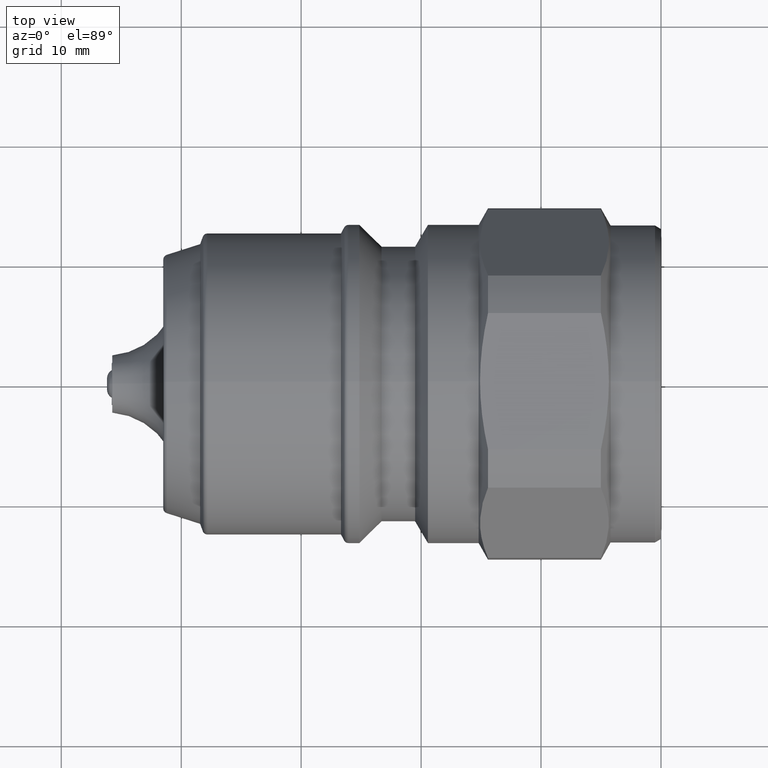
[diagram: clean part render]
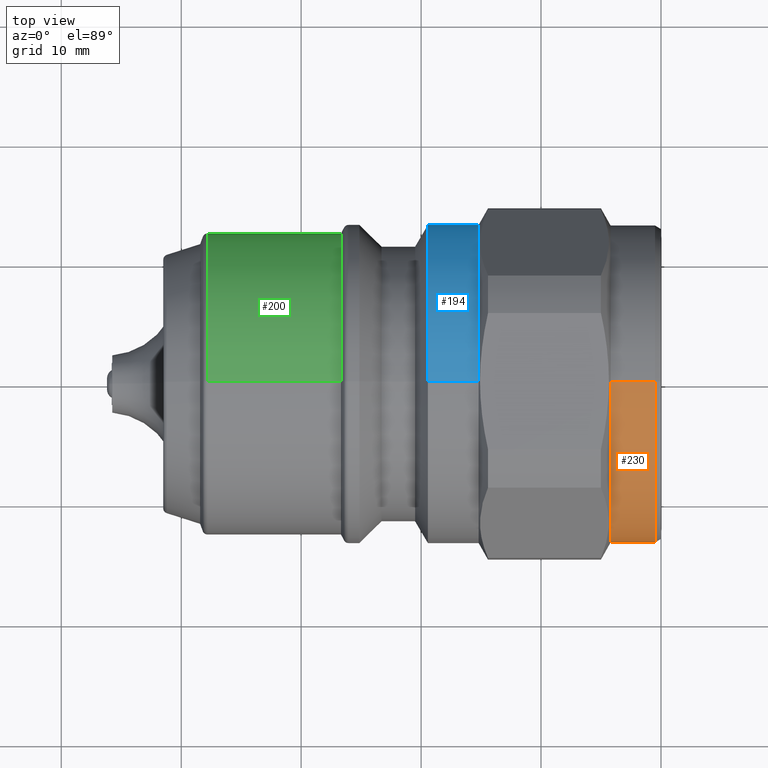
[diagram: same view with three faces highlighted in distinct colors, each labeled with its STEP entity id]
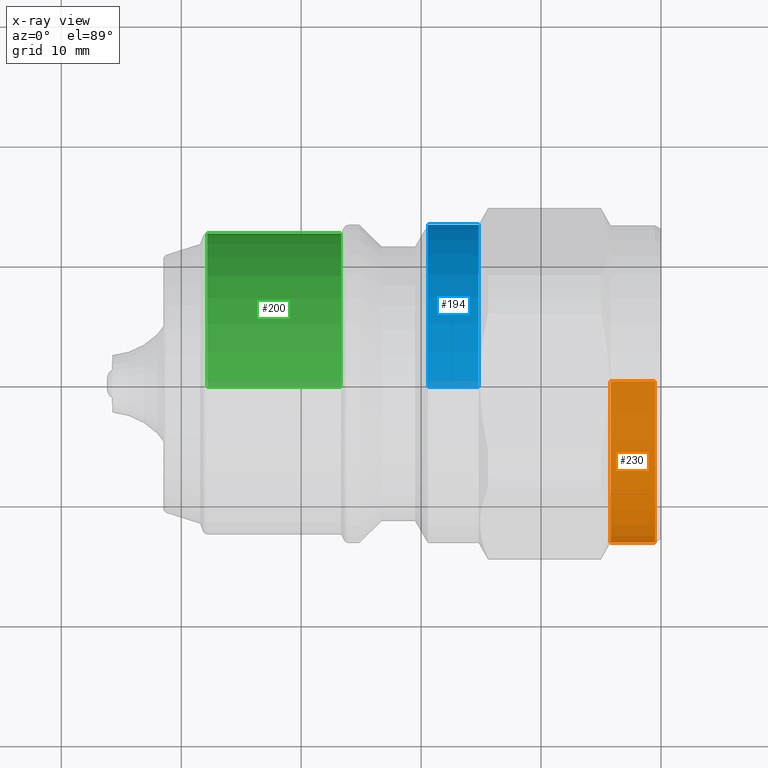
[diagram: x-ray of the same camera — body ghosted, the three highlighted faces saturated]
A machine part, top view with three faces highlighted in distinct colors.
The next image is the same camera in x-ray (body ghosted, the three faces saturated) — at least one of them is partly hidden behind the body in this view.
Their STEP definitions:

[orange] entity #230 — the highlighted cylindrical surface (partial cylindrical patch) has radius 13.25 mm, axis along (-1, 0, 0).
#31 = VERTEX_POINT ( 'NONE', #115 ) ;
#37 = VERTEX_POINT ( 'NONE', #124 ) ;
#65 = VERTEX_POINT ( 'NONE', #153 ) ;
#115 = CARTESIAN_POINT ( 'NONE',  ( -0.4999999981805950400, 0.0000000000000000000, 13.25000000000000000 ) ) ;
#124 = CARTESIAN_POINT ( 'NONE',  ( -4.199999998180624400, 1.708382284810558000E-015, -13.25000000000000000 ) ) ;
#153 = CARTESIAN_POINT ( 'NONE',  ( -4.199999998180624400, 0.0000000000000000000, 13.25000000000000000 ) ) ;
#230 = ADVANCED_FACE ( 'NONE', ( #1033 ), #1034, .T. ) ;
#307 = DIRECTION ( 'NONE',  ( -1.000000000000000000, 0.0000000000000000000, 0.0000000000000000000 ) ) ;
#311 = CARTESIAN_POINT ( 'NONE',  ( -17.44999999818065100, 0.0000000000000000000, 0.0000000000000000000 ) ) ;
#312 = DIRECTION ( 'NONE',  ( 0.0000000000000000000, 0.0000000000000000000, 1.000000000000000000 ) ) ;
#450 = CARTESIAN_POINT ( 'NONE',  ( -0.4999999981805950400, 1.622657008870242900E-015, -13.25000000000000000 ) ) ;
#539 = DIRECTION ( 'NONE',  ( -1.000000000000000000, 0.0000000000000000000, 0.0000000000000000000 ) ) ;
#540 = CARTESIAN_POINT ( 'NONE',  ( -17.44999999818065100, 0.0000000000000000000, 13.25000000000000000 ) ) ;
#544 = CARTESIAN_POINT ( 'NONE',  ( -17.44999999818065100, 1.622657008870242900E-015, -13.25000000000000000 ) ) ;
#545 = DIRECTION ( 'NONE',  ( -1.000000000000000000, 0.0000000000000000000, 0.0000000000000000000 ) ) ;
#599 = ORIENTED_EDGE ( 'NONE', *, *, #1422, .F. ) ;
#600 = ORIENTED_EDGE ( 'NONE', *, *, #1477, .T. ) ;
#601 = ORIENTED_EDGE ( 'NONE', *, *, #1387, .T. ) ;
#602 = ORIENTED_EDGE ( 'NONE', *, *, #1479, .F. ) ;
#784 = EDGE_LOOP ( 'NONE', ( #602, #601, #600, #599 ) ) ;
#1033 = FACE_OUTER_BOUND ( 'NONE', #784, .T. ) ;
#1034 = CYLINDRICAL_SURFACE ( 'NONE', #1309, 13.25000000000000000 ) ;
#1155 = VERTEX_POINT ( 'NONE', #450 ) ;
#1246 = AXIS2_PLACEMENT_3D ( 'NONE', #1813, #1814, #1816 ) ;
#1261 = AXIS2_PLACEMENT_3D ( 'NONE', #1701, #1699, #1703 ) ;
#1309 = AXIS2_PLACEMENT_3D ( 'NONE', #311, #307, #312 ) ;
#1387 = EDGE_CURVE ( 'NONE', #1155, #31, #2176, .T. ) ;
#1422 = EDGE_CURVE ( 'NONE', #37, #65, #2089, .T. ) ;
#1477 = EDGE_CURVE ( 'NONE', #31, #65, #2059, .T. ) ;
#1479 = EDGE_CURVE ( 'NONE', #1155, #37, #2069, .T. ) ;
#1699 = DIRECTION ( 'NONE',  ( -1.000000000000000000, 0.0000000000000000000, 0.0000000000000000000 ) ) ;
#1701 = CARTESIAN_POINT ( 'NONE',  ( -0.4999999981805950400, 0.0000000000000000000, 0.0000000000000000000 ) ) ;
#1703 = DIRECTION ( 'NONE',  ( 0.0000000000000000000, 0.0000000000000000000, 1.000000000000000000 ) ) ;
#1813 = CARTESIAN_POINT ( 'NONE',  ( -4.199999998180624400, 0.0000000000000000000, 0.0000000000000000000 ) ) ;
#1814 = DIRECTION ( 'NONE',  ( -1.000000000000000000, 0.0000000000000000000, 0.0000000000000000000 ) ) ;
#1816 = DIRECTION ( 'NONE',  ( 0.0000000000000000000, 0.0000000000000000000, 1.000000000000000000 ) ) ;
#2059 = LINE ( 'NONE', #540, #2087 ) ;
#2069 = LINE ( 'NONE', #544, #2175 ) ;
#2087 = VECTOR ( 'NONE', #539, 1000.000000000000000 ) ;
#2089 = CIRCLE ( 'NONE', #1246, 13.25000000000000000 ) ;
#2175 = VECTOR ( 'NONE', #545, 1000.000000000000000 ) ;
#2176 = CIRCLE ( 'NONE', #1261, 13.25000000000000000 ) ;

[blue] entity #194 — the highlighted cylindrical surface (partial cylindrical patch) has radius 13.3 mm, axis along (-1, 0, 0).
#50 = VERTEX_POINT ( 'NONE', #135 ) ;
#89 = VERTEX_POINT ( 'NONE', #173 ) ;
#95 = VERTEX_POINT ( 'NONE', #141 ) ;
#135 = CARTESIAN_POINT ( 'NONE',  ( -19.43190200006190000, 1.628780242865979800E-015, -13.29999999999999900 ) ) ;
#141 = CARTESIAN_POINT ( 'NONE',  ( -19.43190200006190000, 0.0000000000000000000, 13.29999999999999900 ) ) ;
#173 = CARTESIAN_POINT ( 'NONE',  ( -15.19999999818060000, 1.628780242865979800E-015, 13.29999999999999900 ) ) ;
#194 = ADVANCED_FACE ( 'NONE', ( #928 ), #929, .T. ) ;
#299 = CARTESIAN_POINT ( 'NONE',  ( -15.19999999818060000, 0.0000000000000000000, -13.29999999999999900 ) ) ;
#526 = DIRECTION ( 'NONE',  ( 0.0000000000000000000, 0.0000000000000000000, 1.000000000000000000 ) ) ;
#534 = DIRECTION ( 'NONE',  ( -1.000000000000000000, 0.0000000000000000000, 0.0000000000000000000 ) ) ;
#549 = CARTESIAN_POINT ( 'NONE',  ( -17.44999999818065100, 0.0000000000000000000, 13.29999999999999900 ) ) ;
#550 = DIRECTION ( 'NONE',  ( -1.000000000000000000, 0.0000000000000000000, 0.0000000000000000000 ) ) ;
#551 = DIRECTION ( 'NONE',  ( -1.000000000000000000, 0.0000000000000000000, 0.0000000000000000000 ) ) ;
#552 = CARTESIAN_POINT ( 'NONE',  ( -17.44999999818065100, 1.628780242865979800E-015, -13.29999999999999900 ) ) ;
#553 = CARTESIAN_POINT ( 'NONE',  ( -15.19999999818060000, 0.0000000000000000000, 0.0000000000000000000 ) ) ;
#555 = CARTESIAN_POINT ( 'NONE',  ( -19.43190200006190000, 0.0000000000000000000, 0.0000000000000000000 ) ) ;
#690 = ORIENTED_EDGE ( 'NONE', *, *, #1481, .F. ) ;
#691 = ORIENTED_EDGE ( 'NONE', *, *, #1485, .F. ) ;
#692 = ORIENTED_EDGE ( 'NONE', *, *, #1482, .T. ) ;
#693 = ORIENTED_EDGE ( 'NONE', *, *, #1483, .T. ) ;
#808 = EDGE_LOOP ( 'NONE', ( #693, #692, #691, #690 ) ) ;
#928 = FACE_OUTER_BOUND ( 'NONE', #808, .T. ) ;
#929 = CYLINDRICAL_SURFACE ( 'NONE', #1355, 13.29999999999999900 ) ;
#1158 = VERTEX_POINT ( 'NONE', #299 ) ;
#1355 = AXIS2_PLACEMENT_3D ( 'NONE', #1532, #1531, #1533 ) ;
#1481 = EDGE_CURVE ( 'NONE', #89, #95, #2096, .T. ) ;
#1482 = EDGE_CURVE ( 'NONE', #1158, #50, #2105, .T. ) ;
#1483 = EDGE_CURVE ( 'NONE', #89, #1158, #2128, .T. ) ;
#1485 = EDGE_CURVE ( 'NONE', #95, #50, #2143, .T. ) ;
#1531 = DIRECTION ( 'NONE',  ( -1.000000000000000000, 0.0000000000000000000, 0.0000000000000000000 ) ) ;
#1532 = CARTESIAN_POINT ( 'NONE',  ( -17.44999999818065100, 0.0000000000000000000, 0.0000000000000000000 ) ) ;
#1533 = DIRECTION ( 'NONE',  ( 0.0000000000000000000, 0.0000000000000000000, 1.000000000000000000 ) ) ;
#1930 = DIRECTION ( 'NONE',  ( -1.000000000000000000, 0.0000000000000000000, 0.0000000000000000000 ) ) ;
#1931 = DIRECTION ( 'NONE',  ( 0.0000000000000000000, 0.0000000000000000000, 1.000000000000000000 ) ) ;
#1983 = AXIS2_PLACEMENT_3D ( 'NONE', #555, #1930, #1931 ) ;
#1988 = AXIS2_PLACEMENT_3D ( 'NONE', #553, #534, #526 ) ;
#2045 = VECTOR ( 'NONE', #551, 1000.000000000000000 ) ;
#2096 = LINE ( 'NONE', #549, #2124 ) ;
#2105 = LINE ( 'NONE', #552, #2045 ) ;
#2124 = VECTOR ( 'NONE', #550, 1000.000000000000000 ) ;
#2128 = CIRCLE ( 'NONE', #1988, 13.29999999999999900 ) ;
#2143 = CIRCLE ( 'NONE', #1983, 13.29999999999999900 ) ;

[green] entity #200 — the highlighted cylindrical surface (partial cylindrical patch) has radius 12.55 mm, axis along (-1, 0, 0).
#85 = VERTEX_POINT ( 'NONE', #170 ) ;
#91 = VERTEX_POINT ( 'NONE', #175 ) ;
#170 = CARTESIAN_POINT ( 'NONE',  ( -37.81991698471615100, 0.0000000000000000000, 12.55000000000000100 ) ) ;
#175 = CARTESIAN_POINT ( 'NONE',  ( -26.68219103999999900, 1.569248801240285000E-015, 12.55000000000000100 ) ) ;
#200 = ADVANCED_FACE ( 'NONE', ( #946 ), #947, .T. ) ;
#339 = CARTESIAN_POINT ( 'NONE',  ( -26.68219103999999900, 0.0000000000000000000, -12.55000000000000100 ) ) ;
#445 = CARTESIAN_POINT ( 'NONE',  ( -37.81991698471615100, 1.536931732929928400E-015, -12.55000000000000100 ) ) ;
#518 = DIRECTION ( 'NONE',  ( -1.000000000000000000, 0.0000000000000000000, 0.0000000000000000000 ) ) ;
#519 = CARTESIAN_POINT ( 'NONE',  ( -17.44999999818065100, 0.0000000000000000000, 12.55000000000000100 ) ) ;
#520 = DIRECTION ( 'NONE',  ( -1.000000000000000000, 0.0000000000000000000, 0.0000000000000000000 ) ) ;
#521 = CARTESIAN_POINT ( 'NONE',  ( -17.44999999818065100, 1.536931732929928400E-015, -12.55000000000000100 ) ) ;
#522 = CARTESIAN_POINT ( 'NONE',  ( -26.68219103999999900, 0.0000000000000000000, 0.0000000000000000000 ) ) ;
#523 = DIRECTION ( 'NONE',  ( -1.000000000000000000, 0.0000000000000000000, 0.0000000000000000000 ) ) ;
#524 = DIRECTION ( 'NONE',  ( 0.0000000000000000000, 0.0000000000000000000, 1.000000000000000000 ) ) ;
#715 = ORIENTED_EDGE ( 'NONE', *, *, #1498, .F. ) ;
#716 = ORIENTED_EDGE ( 'NONE', *, *, #1434, .T. ) ;
#717 = ORIENTED_EDGE ( 'NONE', *, *, #1499, .T. ) ;
#718 = ORIENTED_EDGE ( 'NONE', *, *, #1500, .T. ) ;
#765 = EDGE_LOOP ( 'NONE', ( #718, #717, #716, #715 ) ) ;
#946 = FACE_OUTER_BOUND ( 'NONE', #765, .T. ) ;
#947 = CYLINDRICAL_SURFACE ( 'NONE', #1347, 12.55000000000000100 ) ;
#1150 = VERTEX_POINT ( 'NONE', #445 ) ;
#1168 = VERTEX_POINT ( 'NONE', #339 ) ;
#1347 = AXIS2_PLACEMENT_3D ( 'NONE', #1565, #1566, #1567 ) ;
#1434 = EDGE_CURVE ( 'NONE', #1150, #85, #2068, .T. ) ;
#1498 = EDGE_CURVE ( 'NONE', #91, #85, #2120, .T. ) ;
#1499 = EDGE_CURVE ( 'NONE', #1168, #1150, #2112, .T. ) ;
#1500 = EDGE_CURVE ( 'NONE', #91, #1168, #2046, .T. ) ;
#1565 = CARTESIAN_POINT ( 'NONE',  ( -17.44999999818065100, 0.0000000000000000000, 0.0000000000000000000 ) ) ;
#1566 = DIRECTION ( 'NONE',  ( -1.000000000000000000, 0.0000000000000000000, 0.0000000000000000000 ) ) ;
#1567 = DIRECTION ( 'NONE',  ( 0.0000000000000000000, 0.0000000000000000000, 1.000000000000000000 ) ) ;
#1841 = CARTESIAN_POINT ( 'NONE',  ( -37.81991698471615100, 0.0000000000000000000, 0.0000000000000000000 ) ) ;
#1844 = DIRECTION ( 'NONE',  ( 0.0000000000000000000, 0.0000000000000000000, -1.000000000000000000 ) ) ;
#1846 = DIRECTION ( 'NONE',  ( 1.000000000000000000, 0.0000000000000000000, 0.0000000000000000000 ) ) ;
#1959 = AXIS2_PLACEMENT_3D ( 'NONE', #522, #523, #524 ) ;
#1965 = AXIS2_PLACEMENT_3D ( 'NONE', #1841, #1846, #1844 ) ;
#1999 = VECTOR ( 'NONE', #520, 1000.000000000000000 ) ;
#2046 = CIRCLE ( 'NONE', #1959, 12.55000000000000100 ) ;
#2068 = CIRCLE ( 'NONE', #1965, 12.55000000000000100 ) ;
#2112 = LINE ( 'NONE', #521, #1999 ) ;
#2120 = LINE ( 'NONE', #519, #2129 ) ;
#2129 = VECTOR ( 'NONE', #518, 1000.000000000000000 ) ;